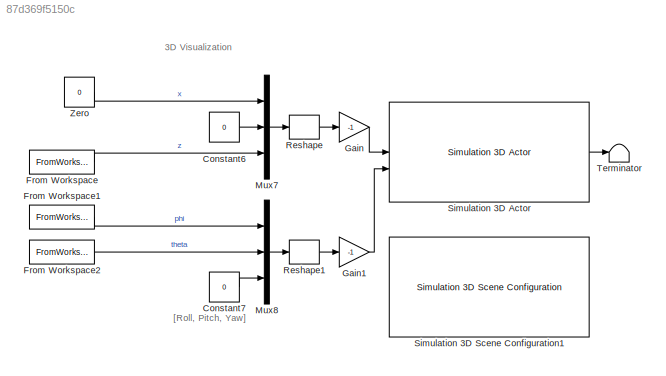
MODEL slx_87d369f5150c
KIND model
CONFIG AbsTol = auto
CONFIG EnableMultiTasking = off
CONFIG FixedStep = auto
CONFIG MaxStep = auto
CONFIG MinStep = auto
CONFIG RelTol = 1e-3
CONFIG SampleTimeConstraint = Unconstrained
CONFIG SolverName = VariableStepAuto
CONFIG StartTime = 0.0
CONFIG StopTime = inf
BLOCK [Constant] Constant6
  Value = 0
BLOCK [Constant] Constant7
  Value = 0
BLOCK [FromWorkspace] From Workspace
  OutputAfterFinalValue = Holding final value
  VariableName = z_ts
BLOCK [FromWorkspace] From Workspace1
  OutputAfterFinalValue = Holding final value
  VariableName = phi_ts
BLOCK [FromWorkspace] From Workspace2
  OutputAfterFinalValue = Holding final value
  VariableName = theta_ts
BLOCK [Gain] Gain
  Gain = -1
BLOCK [Gain] Gain1
  Gain = -1
BLOCK [Mux] Mux7
  DisplayOption = bar
  Inputs = 3
BLOCK [Mux] Mux8
  DisplayOption = bar
  Inputs = 3
BLOCK [Reshape] Reshape
  OutputDimensionality = Row vector (2-D)
BLOCK [Reshape] Reshape1
  OutputDimensionality = Row vector (2-D)
BLOCK [Reference] Simulation 3D Actor  REF=sim3dlib/Simulation 3D Actor
  LibrarySourceBlock = sl3dlib/Simulation 3D/Actors/Simulation 3D Actor
  Priority = 1
  SourceBlock = sim3dlib/Simulation 3D Actor
  SourceType = Simulation 3D Actor
BLOCK [Reference] Simulation 3D Scene Configuration1  REF=sim3dlib/Simulation 3D Scene Configuration
  LibrarySourceBlock = sl3dlib/Simulation 3D/Environment/Simulation 3D Scene Configuration
  Priority = 0
  SourceBlock = sim3dlib/Simulation 3D Scene Configuration
  SourceType = Simulation 3D Scene Configuration
BLOCK [Terminator] Terminator
BLOCK [Constant] Zero
  OutDataTypeStr = Inherit: Inherit via back propagation
  Value = 0
ANNOTATION (root): 3D Visualization
ANNOTATION (root): [Roll, Pitch, Yaw]
LINE Constant6:1 -> Mux7:2
LINE Constant7:1 -> Mux8:3
LINE From Workspace1:1 -> Mux8:1
LINE From Workspace2:1 -> Mux8:2
LINE From Workspace:1 -> Mux7:3
LINE Gain1:1 -> Simulation 3D Actor:2
LINE Gain:1 -> Simulation 3D Actor:1
LINE Mux7:1 -> Reshape:1
LINE Mux8:1 -> Reshape1:1
LINE Reshape1:1 -> Gain1:1
LINE Reshape:1 -> Gain:1
LINE Simulation 3D Actor:1 -> Terminator:1
LINE Zero:1 -> Mux7:1
